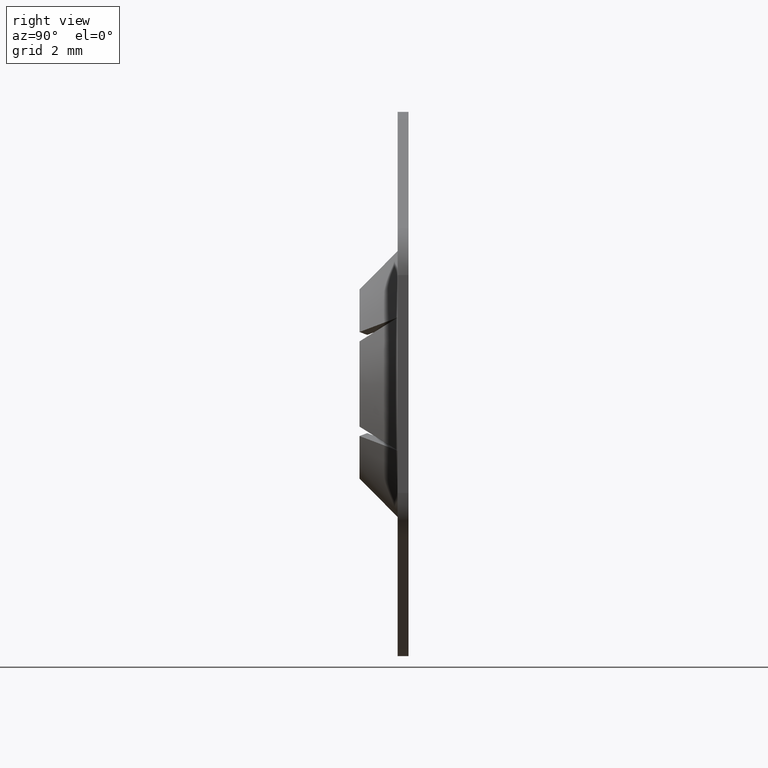
[diagram: clean part render]
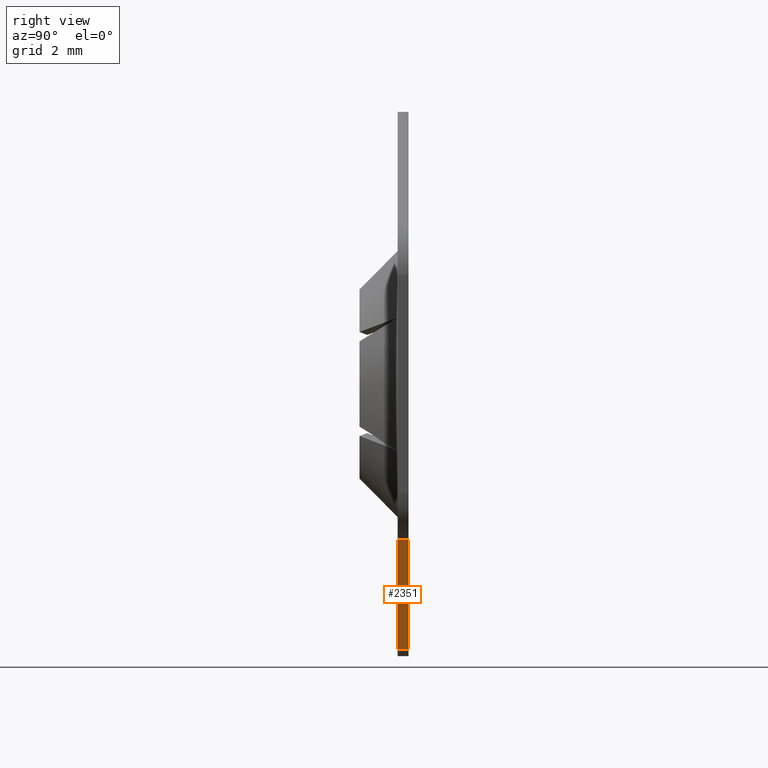
[diagram: same view with one face highlighted and labeled with its STEP entity id]
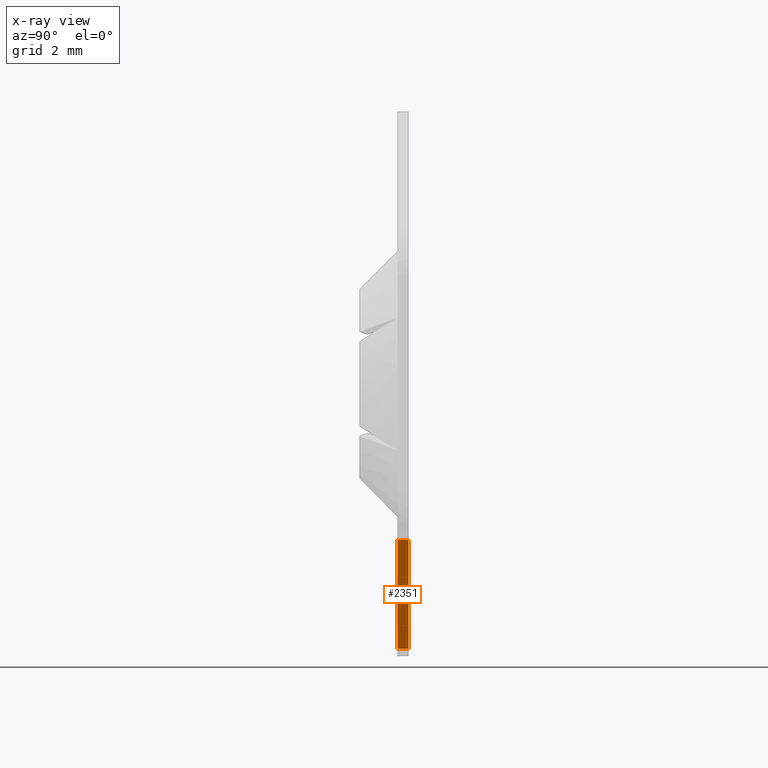
[diagram: x-ray of the same camera — body ghosted, the highlighted face saturated]
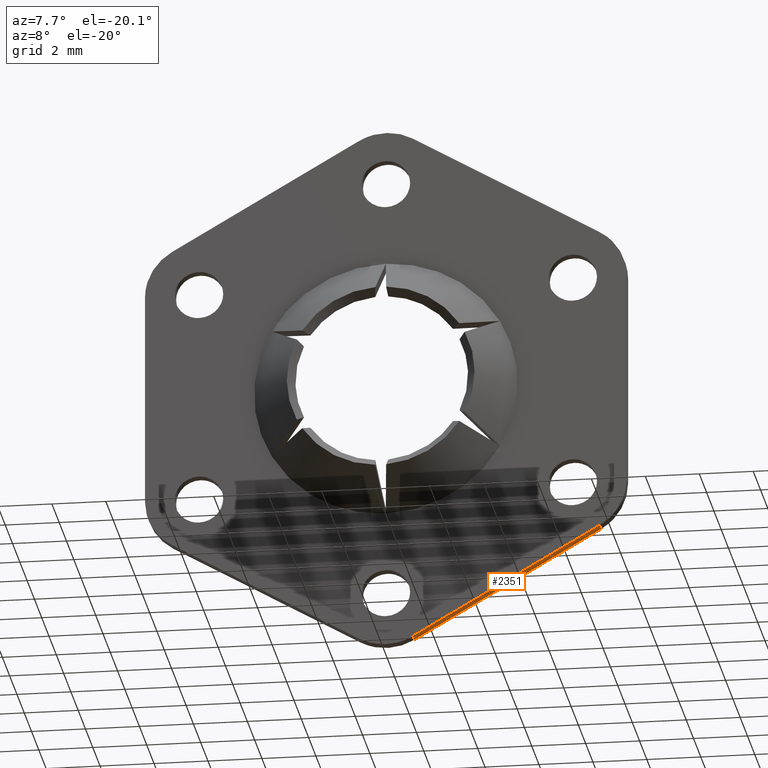
[diagram: same view with one face highlighted and labeled with its STEP entity id]
A machine part, right view. The second image highlights one B-rep face of the part: STEP entity #2351.
The next image is the same camera in x-ray: the body ghosted, the highlighted face saturated — about 0% of this face is hidden behind the body in this view.
A second angle (auxiliary view) of the same face is appended — the face is thin or edge-on in the first view.
In plain terms, the highlighted face is a freeform B-spline surface patch.
Its self-contained STEP definition (entity closure, byte-faithful):
#1249=CARTESIAN_POINT('',(0.999999998148503,-0.400000000000019,-9.732050806861329));
#1250=VERTEX_POINT('',#1249);
#1263=CARTESIAN_POINT('',(7.928203229102291,-0.400000000000019,-5.732050806927190));
#1264=VERTEX_POINT('',#1263);
#1265=CARTESIAN_POINT('',(7.928203229102291,-0.400000000000019,-5.732050806927190));
#1266=CARTESIAN_POINT('',(0.999999998148503,-0.400000000000019,-9.732050806861329));
#1267=QUASI_UNIFORM_CURVE('',1,(#1265,#1266),.UNSPECIFIED.,.F.,.U.);
#1268=EDGE_CURVE('',#1264,#1250,#1267,.T.);
#2249=CARTESIAN_POINT('',(7.928203229102291,0.0,-5.732050806927190));
#2250=VERTEX_POINT('',#2249);
#2269=CARTESIAN_POINT('',(7.928203229102291,0.0,-5.732050806927190));
#2270=CARTESIAN_POINT('',(7.928203229102291,-0.400000000000019,-5.732050806927190));
#2271=QUASI_UNIFORM_CURVE('',1,(#2269,#2270),.UNSPECIFIED.,.F.,.U.);
#2272=EDGE_CURVE('',#2250,#1264,#2271,.T.);
#2291=CARTESIAN_POINT('',(0.999999998148503,0.0,-9.732050806861329));
#2292=VERTEX_POINT('',#2291);
#2306=CARTESIAN_POINT('',(0.999999998148503,-0.400000000000019,-9.732050806861329));
#2307=CARTESIAN_POINT('',(0.999999998148503,0.0,-9.732050806861329));
#2308=QUASI_UNIFORM_CURVE('',1,(#2306,#2307),.UNSPECIFIED.,.F.,.U.);
#2309=EDGE_CURVE('',#1250,#2292,#2308,.T.);
#2336=CARTESIAN_POINT('',(0.653936260190565,-0.419979999224742,-9.931850799105268));
#2337=CARTESIAN_POINT('',(8.274267152889125,-0.419979999224742,-5.532250707394902));
#2338=CARTESIAN_POINT('',(0.653936260190565,0.019980009953559,-9.931850799105268));
#2339=CARTESIAN_POINT('',(8.274267152889125,0.019980009953559,-5.532250707394902));
#2340=B_SPLINE_SURFACE_WITH_KNOTS('',1,1,((#2336,#2338),(#2337,#2339)),.UNSPECIFIED.,.F.,.F.,.U.,(2,2),(2,2),(0.0,8.799200184175485),(0.0,0.439960009178301),.UNSPECIFIED.);
#2341=ORIENTED_EDGE('',*,*,#1268,.T.);
#2342=ORIENTED_EDGE('',*,*,#2309,.T.);
#2343=CARTESIAN_POINT('',(7.928203229102291,0.0,-5.732050806927190));
#2344=CARTESIAN_POINT('',(0.999999998148503,0.0,-9.732050806861329));
#2345=QUASI_UNIFORM_CURVE('',1,(#2343,#2344),.UNSPECIFIED.,.F.,.U.);
#2346=EDGE_CURVE('',#2250,#2292,#2345,.T.);
#2347=ORIENTED_EDGE('',*,*,#2346,.F.);
#2348=ORIENTED_EDGE('',*,*,#2272,.T.);
#2349=EDGE_LOOP('',(#2341,#2342,#2347,#2348));
#2350=FACE_OUTER_BOUND('',#2349,.T.);
#2351=ADVANCED_FACE('',(#2350),#2340,.F.);